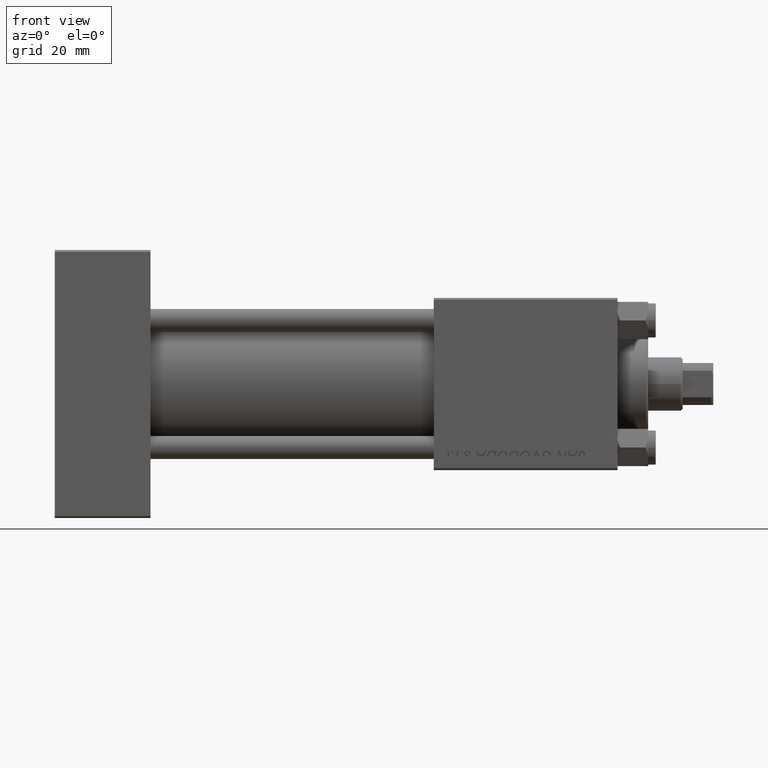
[diagram: clean part render]
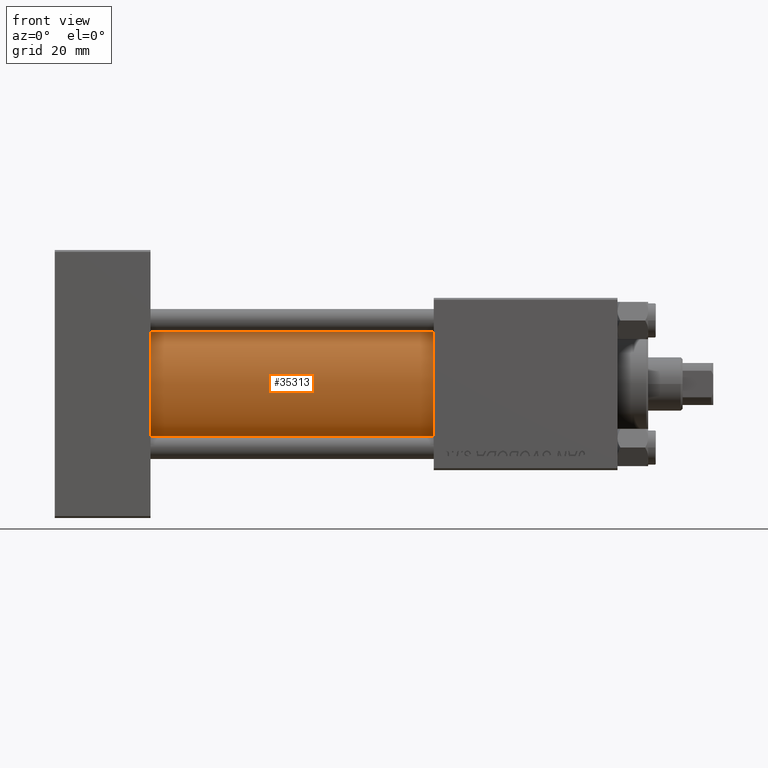
[diagram: same view with one face highlighted and labeled with its STEP entity id]
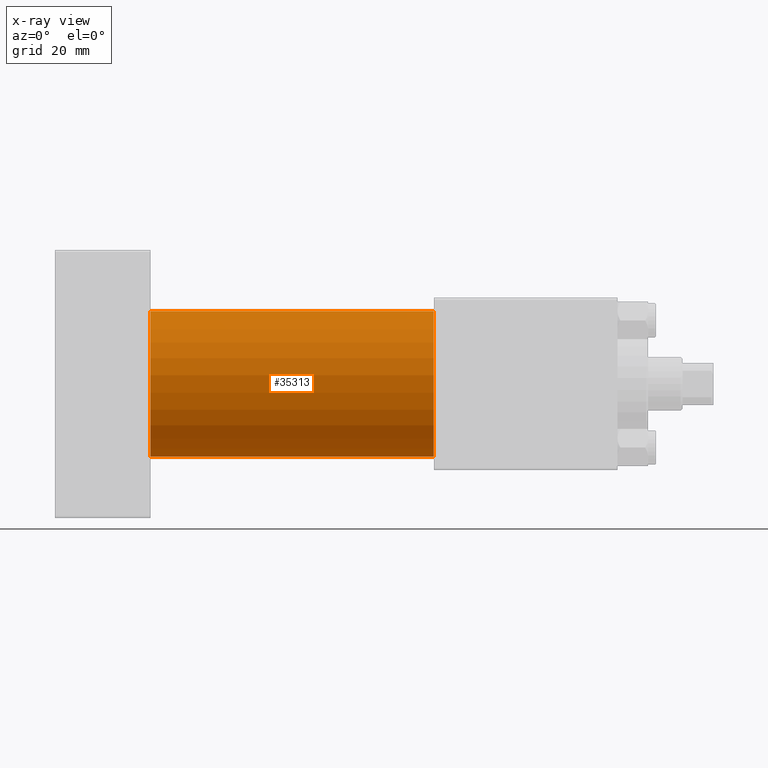
[diagram: x-ray of the same camera — body ghosted, the highlighted face saturated]
A machine part, front view. The second image highlights one B-rep face of the part: STEP entity #35313.
The next image is the same camera in x-ray: the body ghosted, the highlighted face saturated — about 0% of this face is hidden behind the body in this view.
In plain terms, the highlighted cylindrical surface (partial cylindrical patch) has radius 19 mm, axis along (-1, -0, -0).
Its self-contained STEP definition (entity closure, byte-faithful):
#597 = EDGE_CURVE ( 'NONE', #22979, #31200, #31174, .T. ) ;
#2727 = VERTEX_POINT ( 'NONE', #6426 ) ;
#2752 = ORIENTED_EDGE ( 'NONE', *, *, #6834, .F. ) ;
#4362 = DIRECTION ( 'NONE',  ( -1.000000000000000000, -0.000000000000000000, -0.000000000000000000 ) ) ;
#4939 = AXIS2_PLACEMENT_3D ( 'NONE', #45861, #10494, #41832 ) ;
#6426 = CARTESIAN_POINT ( 'NONE',  ( 24.99999999999999289, -2.752562955852396712E-16, -19.00000000000000000 ) ) ;
#6834 = EDGE_CURVE ( 'NONE', #46063, #2727, #15580, .T. ) ;
#10494 = DIRECTION ( 'NONE',  ( 1.000000000000000000, 0.000000000000000000, 0.000000000000000000 ) ) ;
#10530 = CARTESIAN_POINT ( 'NONE',  ( 99.00000000000000000, -2.752562955852396712E-16, -19.00000000000000000 ) ) ;
#10547 = CARTESIAN_POINT ( 'NONE',  ( 24.99999999999999289, -2.602085213965210642E-15, 19.00000000000000000 ) ) ;
#10919 = CARTESIAN_POINT ( 'NONE',  ( 99.00000000000000000, -2.602085213965210642E-15, 0.000000000000000000 ) ) ;
#12373 = CARTESIAN_POINT ( 'NONE',  ( 99.00000000000000000, -2.602085213965210642E-15, 19.00000000000000000 ) ) ;
#13025 = CIRCLE ( 'NONE', #4939, 19.00000000000000000 ) ;
#15580 = LINE ( 'NONE', #10530, #29438 ) ;
#17311 = AXIS2_PLACEMENT_3D ( 'NONE', #10919, #41759, #19028 ) ;
#18524 = FACE_OUTER_BOUND ( 'NONE', #27402, .T. ) ;
#19028 = DIRECTION ( 'NONE',  ( 0.000000000000000000, 0.000000000000000000, 1.000000000000000000 ) ) ;
#22979 = VERTEX_POINT ( 'NONE', #12373 ) ;
#23411 = EDGE_CURVE ( 'NONE', #22979, #46063, #13025, .T. ) ;
#24504 = DIRECTION ( 'NONE',  ( 1.000000000000000000, -0.000000000000000000, 0.000000000000000000 ) ) ;
#25974 = DIRECTION ( 'NONE',  ( -1.000000000000000000, -0.000000000000000000, -0.000000000000000000 ) ) ;
#27402 = EDGE_LOOP ( 'NONE', ( #2752, #39455, #41655, #37635 ) ) ;
#29438 = VECTOR ( 'NONE', #25974, 1000.000000000000000 ) ;
#30148 = CYLINDRICAL_SURFACE ( 'NONE', #17311, 19.00000000000000000 ) ;
#30965 = CARTESIAN_POINT ( 'NONE',  ( 99.00000000000000000, -2.752562955852396712E-16, -19.00000000000000000 ) ) ;
#31174 = LINE ( 'NONE', #47041, #45312 ) ;
#31200 = VERTEX_POINT ( 'NONE', #10547 ) ;
#33332 = CARTESIAN_POINT ( 'NONE',  ( 24.99999999999999289, -2.602085213965210642E-15, 0.000000000000000000 ) ) ;
#35313 = ADVANCED_FACE ( 'NONE', ( #18524 ), #30148, .T. ) ;
#37635 = ORIENTED_EDGE ( 'NONE', *, *, #47485, .T. ) ;
#37762 = AXIS2_PLACEMENT_3D ( 'NONE', #33332, #24504, #40155 ) ;
#39455 = ORIENTED_EDGE ( 'NONE', *, *, #23411, .F. ) ;
#40155 = DIRECTION ( 'NONE',  ( 0.000000000000000000, 0.000000000000000000, 1.000000000000000000 ) ) ;
#41655 = ORIENTED_EDGE ( 'NONE', *, *, #597, .T. ) ;
#41759 = DIRECTION ( 'NONE',  ( -1.000000000000000000, -0.000000000000000000, -0.000000000000000000 ) ) ;
#41832 = DIRECTION ( 'NONE',  ( 0.000000000000000000, 0.000000000000000000, -1.000000000000000000 ) ) ;
#42599 = CIRCLE ( 'NONE', #37762, 19.00000000000000000 ) ;
#45312 = VECTOR ( 'NONE', #4362, 1000.000000000000000 ) ;
#45861 = CARTESIAN_POINT ( 'NONE',  ( 99.00000000000000000, -2.602085213965210642E-15, 0.000000000000000000 ) ) ;
#46063 = VERTEX_POINT ( 'NONE', #30965 ) ;
#47041 = CARTESIAN_POINT ( 'NONE',  ( 99.00000000000000000, -2.602085213965210642E-15, 19.00000000000000000 ) ) ;
#47485 = EDGE_CURVE ( 'NONE', #31200, #2727, #42599, .T. ) ;